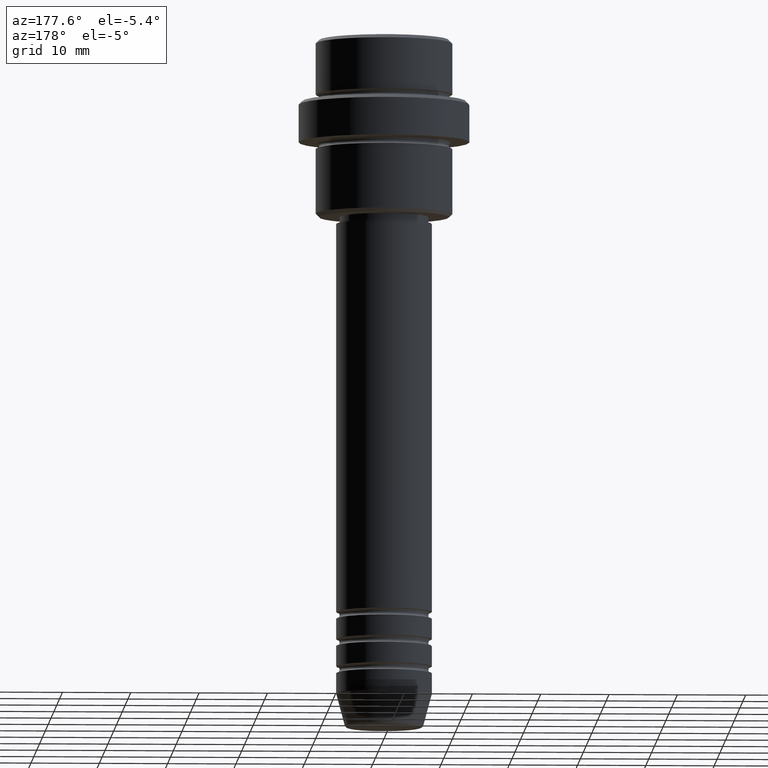
[diagram: clean part render]
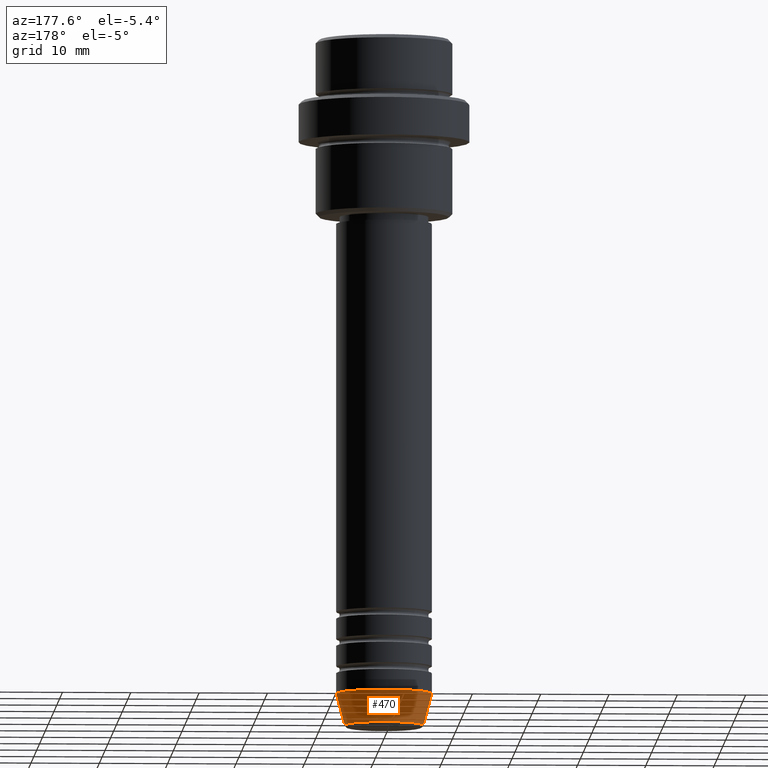
[diagram: same view with one face highlighted and labeled with its STEP entity id]
A machine part, auxiliary view. The second image highlights one B-rep face of the part: STEP entity #470.
In plain terms, the highlighted conical surface has half-angle 15 deg.
Its self-contained STEP definition (entity closure, byte-faithful):
#22 = DIRECTION ( 'NONE',  ( -0.2588190451025213501, 3.169619151431772337E-17, 0.9659258262890680902 ) ) ;
#33 = DIRECTION ( 'NONE',  ( -0.000000000000000000, -0.000000000000000000, 1.000000000000000000 ) ) ;
#51 = CARTESIAN_POINT ( 'NONE',  ( 0.000000000000000000, 0.000000000000000000, -100.6294095225512706 ) ) ;
#66 = EDGE_LOOP ( 'NONE', ( #688, #298, #715, #1349 ) ) ;
#120 = VERTEX_POINT ( 'NONE', #1148 ) ;
#167 = DIRECTION ( 'NONE',  ( -0.000000000000000000, -0.000000000000000000, 1.000000000000000000 ) ) ;
#185 = DIRECTION ( 'NONE',  ( 1.000000000000000000, 0.000000000000000000, 0.000000000000000000 ) ) ;
#201 = EDGE_CURVE ( 'NONE', #496, #1132, #505, .T. ) ;
#247 = EDGE_CURVE ( 'NONE', #496, #445, #658, .T. ) ;
#298 = ORIENTED_EDGE ( 'NONE', *, *, #1321, .T. ) ;
#352 = CARTESIAN_POINT ( 'NONE',  ( 7.000000000000000000, 0.000000000000000000, -96.00000000000000000 ) ) ;
#358 = LINE ( 'NONE', #911, #823 ) ;
#445 = VERTEX_POINT ( 'NONE', #352 ) ;
#460 = CIRCLE ( 'NONE', #1265, 7.000000000000000000 ) ;
#470 = ADVANCED_FACE ( 'NONE', ( #685 ), #497, .T. ) ;
#496 = VERTEX_POINT ( 'NONE', #814 ) ;
#497 = CONICAL_SURFACE ( 'NONE', #1127, 7.000000000000000000, 0.2617993877991500740 ) ;
#505 = CIRCLE ( 'NONE', #1022, 5.759553456999433330 ) ;
#524 = CARTESIAN_POINT ( 'NONE',  ( 7.000000000000000000, 0.000000000000000000, -96.00000000000000000 ) ) ;
#547 = DIRECTION ( 'NONE',  ( 0.2588190451025213501, 0.000000000000000000, 0.9659258262890680902 ) ) ;
#590 = CARTESIAN_POINT ( 'NONE',  ( 0.000000000000000000, 0.000000000000000000, -96.00000000000000000 ) ) ;
#624 = EDGE_CURVE ( 'NONE', #445, #120, #460, .T. ) ;
#658 = LINE ( 'NONE', #524, #956 ) ;
#685 = FACE_OUTER_BOUND ( 'NONE', #66, .T. ) ;
#688 = ORIENTED_EDGE ( 'NONE', *, *, #201, .T. ) ;
#715 = ORIENTED_EDGE ( 'NONE', *, *, #624, .F. ) ;
#723 = CARTESIAN_POINT ( 'NONE',  ( 0.000000000000000000, 0.000000000000000000, -96.00000000000000000 ) ) ;
#741 = DIRECTION ( 'NONE',  ( -0.000000000000000000, -0.000000000000000000, 1.000000000000000000 ) ) ;
#798 = DIRECTION ( 'NONE',  ( 1.000000000000000000, 0.000000000000000000, 0.000000000000000000 ) ) ;
#814 = CARTESIAN_POINT ( 'NONE',  ( 5.759553456999433330, 0.000000000000000000, -100.6294095225512706 ) ) ;
#823 = VECTOR ( 'NONE', #22, 1000.000000000000000 ) ;
#911 = CARTESIAN_POINT ( 'NONE',  ( -7.000000000000000000, 8.572527594031473190E-16, -96.00000000000000000 ) ) ;
#956 = VECTOR ( 'NONE', #547, 1000.000000000000000 ) ;
#1022 = AXIS2_PLACEMENT_3D ( 'NONE', #51, #167, #1287 ) ;
#1127 = AXIS2_PLACEMENT_3D ( 'NONE', #590, #33, #798 ) ;
#1132 = VERTEX_POINT ( 'NONE', #1190 ) ;
#1148 = CARTESIAN_POINT ( 'NONE',  ( -7.000000000000000000, 8.572527594031473190E-16, -96.00000000000000000 ) ) ;
#1190 = CARTESIAN_POINT ( 'NONE',  ( -5.759553456999433330, 7.812973149831950787E-16, -100.6294095225512706 ) ) ;
#1265 = AXIS2_PLACEMENT_3D ( 'NONE', #723, #741, #185 ) ;
#1287 = DIRECTION ( 'NONE',  ( 1.000000000000000000, 0.000000000000000000, 0.000000000000000000 ) ) ;
#1321 = EDGE_CURVE ( 'NONE', #1132, #120, #358, .T. ) ;
#1349 = ORIENTED_EDGE ( 'NONE', *, *, #247, .F. ) ;